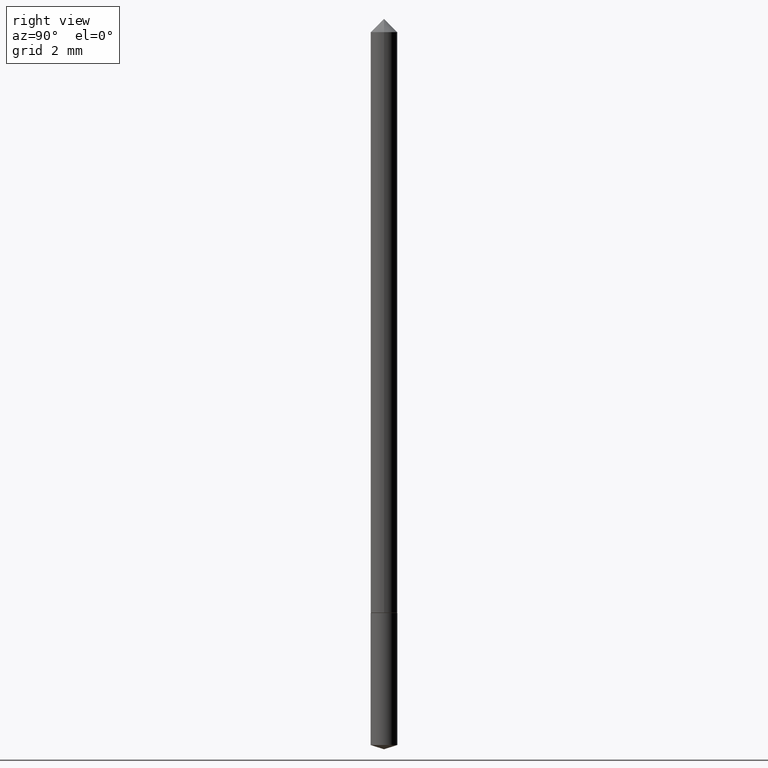
[diagram: clean part render]
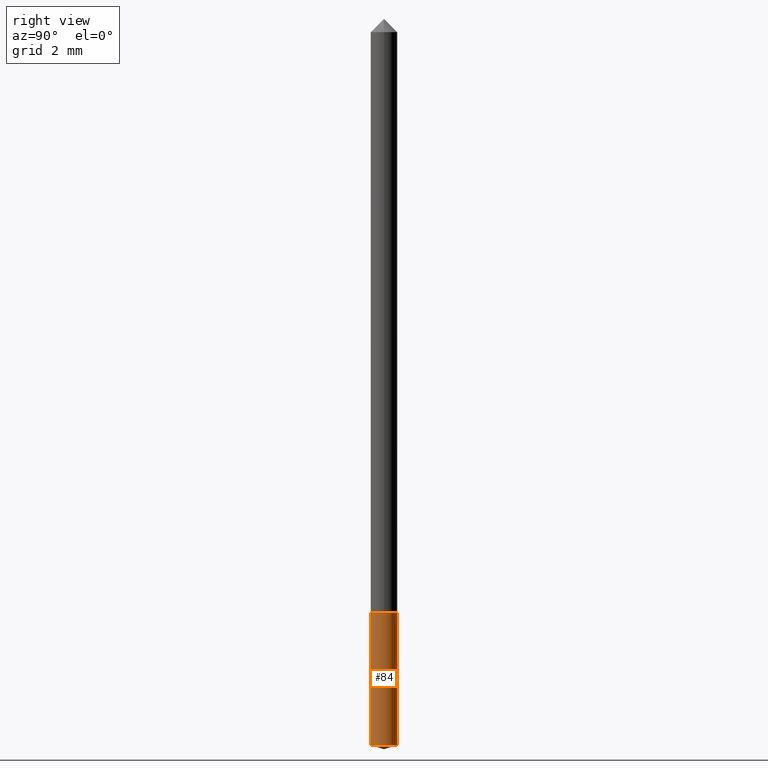
[diagram: same view with one face highlighted and labeled with its STEP entity id]
A machine part, right view. The second image highlights one B-rep face of the part: STEP entity #84.
In plain terms, the highlighted cylindrical surface (edge-blend (fillet) strip) has radius 0.4496 mm, axis along (-0, 0, 1).
Its self-contained STEP definition (entity closure, byte-faithful):
#26 = DIRECTION ( 'NONE',  ( -2.445436275745842788E-29, 3.491527924283732183E-15, 1.000000000000000000 ) ) ;
#34 = ORIENTED_EDGE ( 'NONE', *, *, #72, .T. ) ;
#40 = CARTESIAN_POINT ( 'NONE',  ( 2.393421591865859803E-29, -3.417188039338808911E-15, -0.9787192114368419293 ) ) ;
#61 = EDGE_LOOP ( 'NONE', ( #306, #34, #200, #268 ) ) ;
#72 = EDGE_CURVE ( 'NONE', #153, #116, #100, .T. ) ;
#84 = ADVANCED_FACE ( 'NONE', ( #341 ), #181, .T. ) ;
#85 = CARTESIAN_POINT ( 'NONE',  ( 1.257660642295616485E-16, 0.01769999999999658305, -0.9787192114368419293 ) ) ;
#100 = LINE ( 'NONE', #149, #183 ) ;
#101 = DIRECTION ( 'NONE',  ( -2.445436275745842788E-29, 3.491527924283732183E-15, 1.000000000000000000 ) ) ;
#109 = CARTESIAN_POINT ( 'NONE',  ( -1.235984393950272671E-16, -0.01770000000000280377, -0.8031999999999999140 ) ) ;
#116 = VERTEX_POINT ( 'NONE', #238 ) ;
#138 = DIRECTION ( 'NONE',  ( -6.982962677686265133E-15, -1.000000000000000000, 0.000000000000000000 ) ) ;
#149 = CARTESIAN_POINT ( 'NONE',  ( 1.257660642295573590E-16, 0.01769999999999719714, -0.8031999999999999140 ) ) ;
#152 = CIRCLE ( 'NONE', #265, 0.01770000000000000046 ) ;
#153 = VERTEX_POINT ( 'NONE', #85 ) ;
#166 = CARTESIAN_POINT ( 'NONE',  ( 1.964200545127901750E-29, -2.804357811358814562E-15, -0.8031999999999999140 ) ) ;
#178 = EDGE_CURVE ( 'NONE', #237, #285, #324, .T. ) ;
#180 = VECTOR ( 'NONE', #353, 39.37007874015748143 ) ;
#181 = CYLINDRICAL_SURFACE ( 'NONE', #191, 0.01770000000000000046 ) ;
#183 = VECTOR ( 'NONE', #338, 39.37007874015748143 ) ;
#187 = DIRECTION ( 'NONE',  ( -6.982962677686265133E-15, -1.000000000000000000, 0.000000000000000000 ) ) ;
#189 = DIRECTION ( 'NONE',  ( -2.445436275745842788E-29, 3.491527924283732183E-15, 1.000000000000000000 ) ) ;
#191 = AXIS2_PLACEMENT_3D ( 'NONE', #207, #101, #315 ) ;
#200 = ORIENTED_EDGE ( 'NONE', *, *, #259, .F. ) ;
#207 = CARTESIAN_POINT ( 'NONE',  ( 1.964200545127901750E-29, -2.804357811358814562E-15, -0.8031999999999999140 ) ) ;
#214 = AXIS2_PLACEMENT_3D ( 'NONE', #40, #189, #187 ) ;
#222 = CIRCLE ( 'NONE', #214, 0.01770000000000000046 ) ;
#237 = VERTEX_POINT ( 'NONE', #246 ) ;
#238 = CARTESIAN_POINT ( 'NONE',  ( 1.257660642295616978E-16, 0.01769999999999719714, -0.8031999999999999140 ) ) ;
#246 = CARTESIAN_POINT ( 'NONE',  ( -1.235984393950229777E-16, -0.01770000000000341786, -0.9787192114368419293 ) ) ;
#259 = EDGE_CURVE ( 'NONE', #285, #116, #152, .T. ) ;
#265 = AXIS2_PLACEMENT_3D ( 'NONE', #166, #26, #138 ) ;
#268 = ORIENTED_EDGE ( 'NONE', *, *, #178, .F. ) ;
#270 = CARTESIAN_POINT ( 'NONE',  ( -1.235984393950272671E-16, -0.01770000000000280377, -0.8031999999999999140 ) ) ;
#285 = VERTEX_POINT ( 'NONE', #270 ) ;
#306 = ORIENTED_EDGE ( 'NONE', *, *, #310, .T. ) ;
#310 = EDGE_CURVE ( 'NONE', #237, #153, #222, .T. ) ;
#315 = DIRECTION ( 'NONE',  ( -6.982962677686265133E-15, -1.000000000000000000, 0.000000000000000000 ) ) ;
#324 = LINE ( 'NONE', #109, #180 ) ;
#338 = DIRECTION ( 'NONE',  ( -2.445436275745842788E-29, 3.491527924283731788E-15, 1.000000000000000000 ) ) ;
#341 = FACE_OUTER_BOUND ( 'NONE', #61, .T. ) ;
#353 = DIRECTION ( 'NONE',  ( -2.445436275745842788E-29, 3.491527924283731788E-15, 1.000000000000000000 ) ) ;